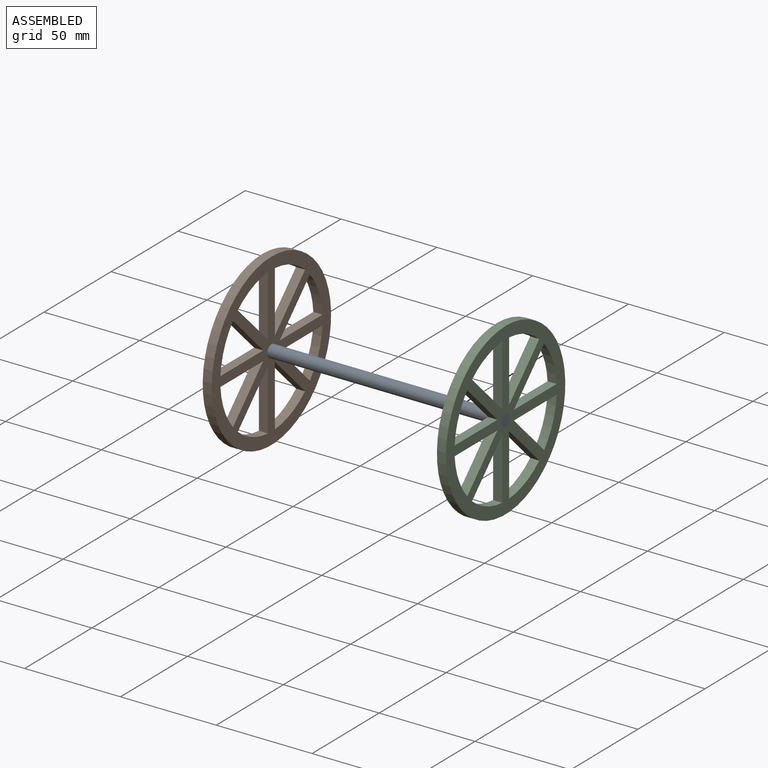
[diagram: assembled view]
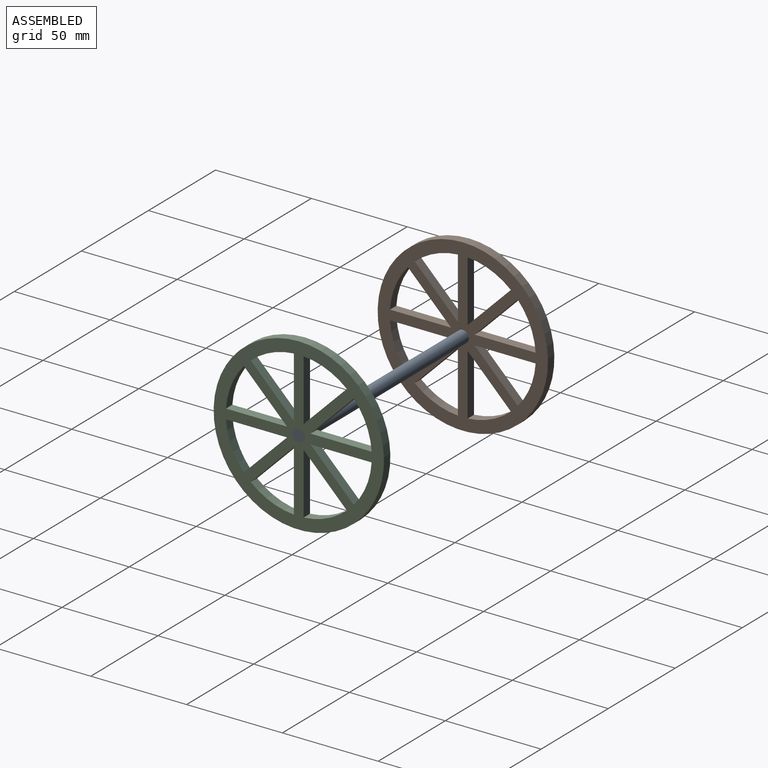
[diagram: assembled view, second angle]
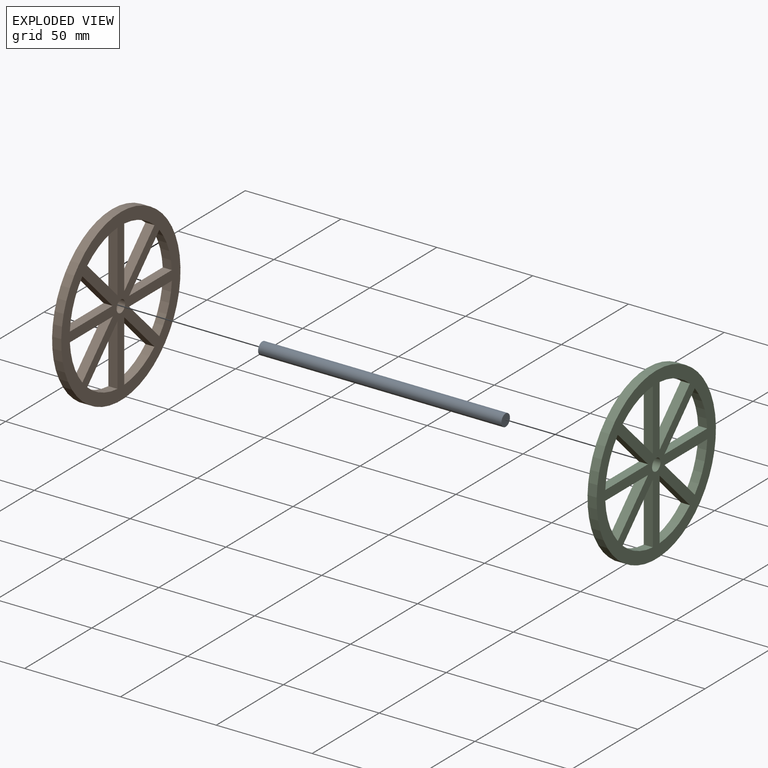
[diagram: exploded view]
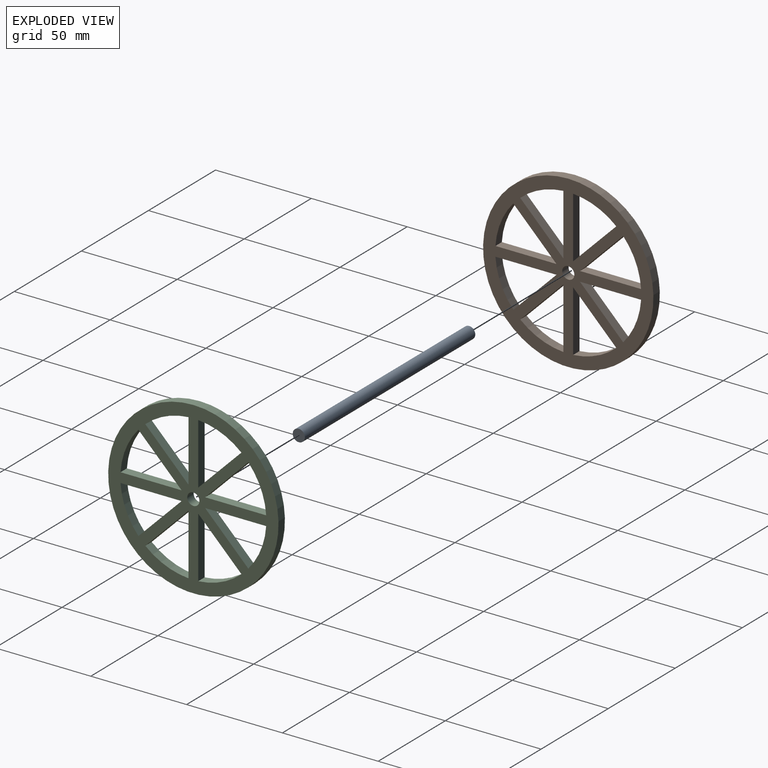
[diagram: exploded view, second angle]
ASSEMBLY  parts=3 mates=2
PART A: 3 faces, bbox 6.4x6.4x127 mm
  f0: cylinder r=3.17mm len=127mm, axis (0,0,-1), area 2533.5mm2, adj f1,f2
  f1: plane 6.35x6.35mm, normal (0,0,1), area 31.7mm2, adj f0
  f2: plane 6.35x6.35mm, normal (0,0,-1), area 31.7mm2, adj f0
PART B: 28 faces, bbox 88.9x88.9x4.8 mm
  f0: plane 22.54x22.54mm, normal (0.71,-0.71,0), area 151.8mm2, adj f1,f17,f26,f27
  f1: cylinder r=38.1mm len=22.54mm, axis (0,0,-1), area 118.3mm2, adj f0,f17,f26,f27
  f2: cylinder r=38.1mm len=22.54mm, axis (0,0,-1), area 118.3mm2, adj f3,f18,f26,f27
  f3: plane 22.54x22.54mm, normal (-0.71,0.71,0), area 151.8mm2, adj f2,f18,f26,f27
  f4: cylinder r=38.1mm len=22.54mm, axis (0,0,-1), area 118.3mm2, adj f5,f19,f26,f27
  f5: plane 31.88x4.76mm, normal (-1,0,0), area 151.8mm2, adj f4,f19,f26,f27
  f6: cylinder r=38.1mm len=22.54mm, axis (0,0,-1), area 118.3mm2, adj f7,f20,f26,f27
  f7: plane 22.54x22.54mm, normal (-0.71,-0.71,0), area 151.8mm2, adj f6,f20,f26,f27
  f8: cylinder r=38.1mm len=22.54mm, axis (0,0,-1), area 118.3mm2, adj f9,f21,f26,f27
  f9: plane 31.88x4.76mm, normal (0,-1,0), area 151.8mm2, adj f8,f21,f26,f27
  f10: cylinder r=38.1mm len=22.54mm, axis (0,0,-1), area 118.3mm2, adj f11,f22,f26,f27
  f11: plane 22.54x22.54mm, normal (0.71,-0.71,0), area 151.8mm2, adj f10,f22,f26,f27
  f12: cylinder r=38.1mm len=22.54mm, axis (0,0,-1), area 118.3mm2, adj f13,f23,f26,f27
  f13: plane 31.88x4.76mm, normal (1,0,0), area 151.8mm2, adj f12,f23,f26,f27
  f14: cylinder r=38.1mm len=22.54mm, axis (0,0,-1), area 118.3mm2, adj f15,f24,f26,f27
  f15: plane 22.54x22.54mm, normal (0.71,0.71,0), area 151.8mm2, adj f14,f24,f26,f27
  f16: cylinder r=44.45mm len=88.9mm, axis (0,0,-1), area 1330.1mm2, adj f26,f27
  f17: plane 31.88x4.76mm, normal (0,1,0), area 151.8mm2, adj f0,f1,f26,f27
  f18: plane 31.88x4.76mm, normal (1,0,0), area 151.8mm2, adj f2,f3,f26,f27
  f19: plane 22.54x22.54mm, normal (0.71,0.71,0), area 151.8mm2, adj f4,f5,f26,f27
  f20: plane 31.88x4.76mm, normal (0,1,0), area 151.8mm2, adj f6,f7,f26,f27
  f21: plane 22.54x22.54mm, normal (-0.71,0.71,0), area 151.8mm2, adj f8,f9,f26,f27
  f22: plane 31.88x4.76mm, normal (-1,0,0), area 151.8mm2, adj f10,f11,f26,f27
  f23: plane 22.54x22.54mm, normal (-0.71,-0.71,0), area 151.8mm2, adj f12,f13,f26,f27
  f24: plane 31.88x4.76mm, normal (0,-1,0), area 151.8mm2, adj f14,f15,f26,f27
  f25: cylinder r=3.17mm len=6.35mm, axis (0,0,-1), area 95mm2, adj f26,f27
  f26: plane 88.9x88.9mm, normal (0,0,1), area 3037.8mm2, adj f0,f1,f2,f3,f4,f5,f6,f7
  f27: plane 88.9x88.9mm, normal (0,0,-1), area 3037.8mm2, adj f0,f1,f2,f3,f4,f5,f6,f7
PART C: same geometry as B
PLACE A rot(axis=(0.71,0,-0.71),180deg) t=(82.22,41.1,-11.6)mm
PLACE B rot(axis=(0,-1,0),90deg) t=(-40.02,41.1,-11.6)mm
PLACE C rot(axis=(0,-1,0),90deg) t=(82.22,41.1,-11.6)mm
MATE fastened A.f0 <-> B.f16  axis (-1,0,0) through (-44.78,41.1,-11.6)mm
MATE fastened A.f0 <-> C.f16  axis (1,0,0) through (82.22,41.1,-11.6)mm
